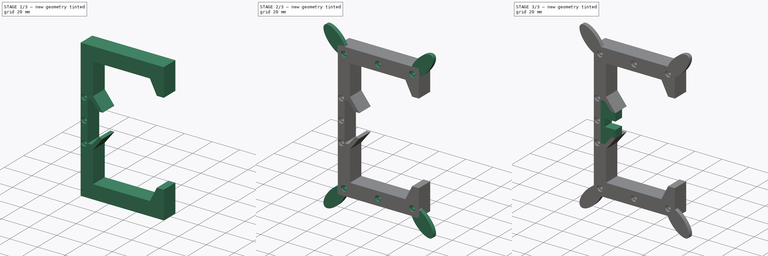
[diagram: build sequence overview — one tinted view per stage of 3, left to right]
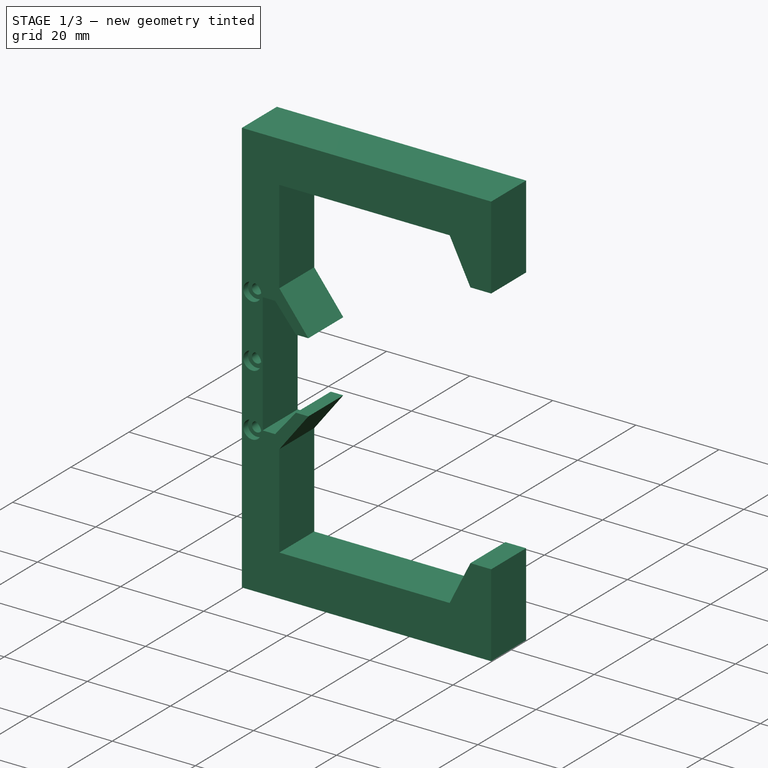
[diagram: stage 1 of 3 — iso view after this stage's code; geometry added in this stage tinted green]
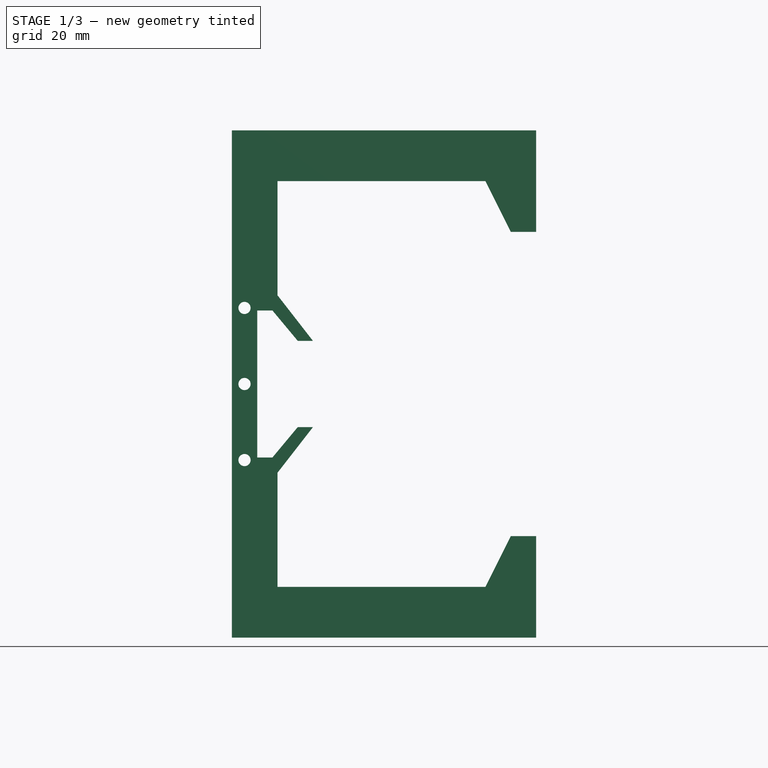
[diagram: stage 1 of 3 — front view after this stage's code; geometry added in this stage tinted green]
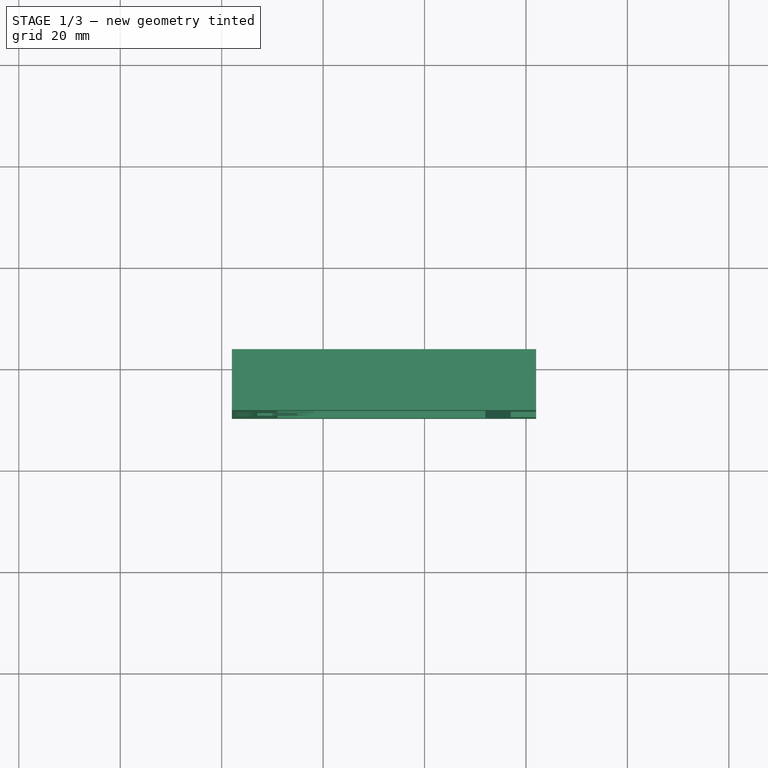
[diagram: stage 1 of 3 — top view after this stage's code; geometry added in this stage tinted green]
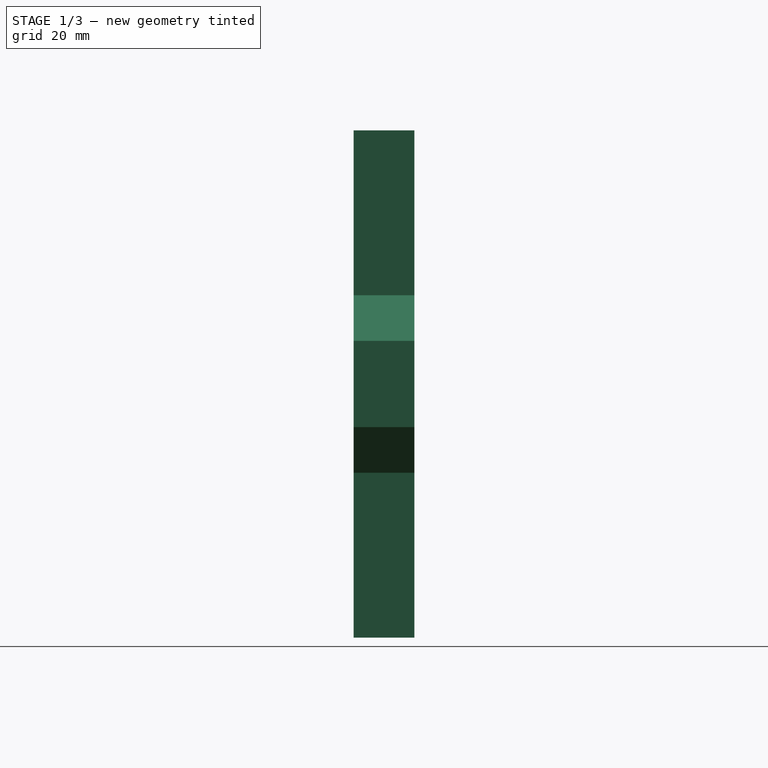
[diagram: stage 1 of 3 — right view after this stage's code; geometry added in this stage tinted green]
FCSTD DOCUMENT  (FreeCAD 1.0R39319 (Git))
Label: bottom-stand-02
License: All rights reserved
LicenseURL: http://en.wikipedia.org/wiki/All_rights_reserved
objects: Sketcher::SketchObject×6, PartDesign::Pad×3, PartDesign::Hole×2, PartDesign::Pocket×1, PartDesign::Body×1, App::Part×1, Measure::MeasureDistanceDetached×1, App::DocumentObjectGroup×1
note: 31 computed .brp shape members not serialized (recipe doc carries the construction recipe); baked Part::Feature solids carry a one-line shape summary decoded from their .brp

FEATURE [Sketcher::SketchObject] Sketch001
  ArcFitTolerance = 1e-06
  FullyConstrained = false
  MakeInternals = false
  MapMode = 45
  Placement = pos=(-8.84591,-9.71239,7.5) rot=(-1,0,0;1.5708rad)
  sketch-geometry (25):
    g0: GeomPoint [constr] X=-3.15 Y=8.69e-14 Z=0
    g1: LineSegment StartX=3.84591 StartY=-8.5 StartZ=0 EndX=-1.15409 EndY=-14.5 EndZ=0
    g2: LineSegment StartX=-1.15409 StartY=-14.5 StartZ=0 EndX=-4.15 EndY=-14.5 EndZ=0
    g3: LineSegment StartX=-4.15 StartY=-14.5 StartZ=0 EndX=-4.15 EndY=14.5 EndZ=0
    g4: LineSegment StartX=-4.15 StartY=14.5 StartZ=0 EndX=-1.15409 EndY=14.5 EndZ=0
    g5: LineSegment StartX=-1.15409 StartY=14.5 StartZ=0 EndX=3.84591 EndY=8.5 EndZ=0
    g6: LineSegment StartX=3.84591 StartY=8.5 StartZ=0 EndX=6.84591 EndY=8.5 EndZ=0
    g7: LineSegment StartX=6.84591 StartY=8.5 StartZ=0 EndX=-0.15 EndY=17.5 EndZ=0
    g8: LineSegment StartX=-9.15 StartY=17.5 StartZ=0 EndX=-9.15 EndY=-17.5 EndZ=0
    g9: LineSegment StartX=-0.15 StartY=-17.5 StartZ=0 EndX=6.84591 EndY=-8.5 EndZ=0
    g10: LineSegment StartX=6.84591 StartY=-8.5 StartZ=0 EndX=3.84591 EndY=-8.5 EndZ=0
    g11: LineSegment StartX=-0.15 StartY=17.5 StartZ=0 EndX=-0.15 EndY=40 EndZ=0
    g12: LineSegment StartX=-0.15 StartY=40 StartZ=0 EndX=40.85 EndY=40 EndZ=0
    g13: LineSegment StartX=40.85 StartY=40 StartZ=0 EndX=45.85 EndY=30 EndZ=0
    g14: LineSegment StartX=45.85 StartY=30 StartZ=0 EndX=50.85 EndY=30 EndZ=0
    g15: LineSegment StartX=50.85 StartY=30 StartZ=0 EndX=50.85 EndY=50 EndZ=0
    g16: LineSegment StartX=50.85 StartY=50 StartZ=0 EndX=-9.15 EndY=50 EndZ=0
    g17: LineSegment StartX=-9.15 StartY=50 StartZ=0 EndX=-9.15 EndY=17.5 EndZ=0
    g18: LineSegment StartX=-0.15 StartY=-17.5 StartZ=0 EndX=-0.15 EndY=-40 EndZ=0
    g19: LineSegment StartX=-0.15 StartY=-40 StartZ=0 EndX=40.85 EndY=-40 EndZ=0
    g20: LineSegment StartX=40.85 StartY=-40 StartZ=0 EndX=45.85 EndY=-30 EndZ=0
    g21: LineSegment StartX=45.85 StartY=-30 StartZ=0 EndX=50.85 EndY=-30 EndZ=0
    g22: LineSegment StartX=50.85 StartY=-30 StartZ=0 EndX=50.85 EndY=-50 EndZ=0
    g23: LineSegment StartX=50.85 StartY=-50 StartZ=0 EndX=-9.15 EndY=-50 EndZ=0
    g24: LineSegment StartX=-9.15 StartY=-50 StartZ=0 EndX=-9.15 EndY=-17.5 EndZ=0
  constraints (82):
    c: Coincident(g1,g2)
    c: Horizontal(g2)
    c: Coincident(g2,g3)
    c: Vertical(g3)
    c: Coincident(g3,g4)
    c: Horizontal(g4)
    c: Coincident(g4,g5)
    c: Coincident(g5,g6)
    c: Horizontal(g6)
    c: Coincident(g6,g7)
    c: Vertical(g8)
    c: Coincident(g9,g10)
    c: Coincident(g10,g1)
    c: DistanceX(g2,g-5) = 1
    c: DistanceX(g8,g2) = 5
    c: DistanceX(g1,g9) = 3
    c: Horizontal(g10)
    c: Equal(g4,g2)
    c: Equal(g7,g9)
    c: Equal(g5,g1)
    c: Equal(g6,g10)
    c: DistanceY(g-7,g3) = 1
    c: DistanceY(g2,g-5) = 1
    c: DistanceY(g-6,g5) = 1
    c: DistanceY(g1,g-3) = 1
    c: DistanceX(g1,g-5) = 0
    c: DistanceX(g-3,g1) = 0
    c: DistanceY(g8,g2) = 3
    c: Coincident(g11,g12)
    c: Horizontal(g12)
    c: Coincident(g12,g13)
    c: Coincident(g13,g14)
    c: Horizontal(g14)
    c: Coincident(g14,g15)
    c: Vertical(g15)
    c: Coincident(g15,g16)
    c: Horizontal(g16)
    c: Coincident(g16,g17)
    c: Vertical(g17)
    c: Vertical(g18)
    c: Coincident(g18,g19)
    c: Horizontal(g19)
    c: Coincident(g19,g20)
    c: Coincident(g20,g21)
    c: Horizontal(g21)
    c: Coincident(g21,g22)
    c: Vertical(g22)
    c: Coincident(g22,g23)
    c: Horizontal(g23)
    c: Coincident(g23,g24)
    c: Coincident(g24,g8)
    c: Vertical(g24)
    c: DistanceX(g16,g16) = 60
    c: Equal(g16,g23)
    c: Equal(g22,g15)
    c: Equal(g21,g14)
    c: DistanceX(g20,g20) = 5
    c: Parallel(g17,g11)
    c: DistanceX(g19,g19) = 41
    c: DistanceX(g12,g12) = 41
    c: DistanceX(g12,g19) = 0
    c: DistanceY(g1,g7) = 32
    c: DistanceY(g9,g1) = 3
    c: DistanceX(g7,g-1) = 0.15
    c: DistanceX(g16,g7) = 9
    c: DistanceY(g-1,g11) = 40
    c: DistanceY(g18,g-1) = 40
    c: DistanceY(g-1,g16) = 50
    c: DistanceY(g23,g-1) = 50
    c: DistanceY(g22,g22) = 20
    c: DistanceY(g11,g11) = 22.5
    c: DistanceY(g8,g8) = 35
    c: DistanceY(g17,g17) = 32.5
    c: Coincident(g11,g7)
    c: Coincident(g18,g9)
    c: Coincident(g8,g17)
    c: DistanceX(g8,g-1) = 9.15
    c: DistanceX(g0,g-1) = 3.15
    c: DistanceX(g-5,g-5) = 2
    c: DistanceX(g23,g23) = 60
    c: DistanceX(g13,g13) = 5
    c: DistanceY(g13,g13) = 10
FEATURE [PartDesign::Pad] Pad
  Direction = (0,1,2e-16)
  Length = 12
  Length2 = 10
  Placement = pos=(-8.84591,-9.71239,7.5) rot=(-1,0,0;1.5708rad)
  Profile = -> Sketch001
  ReferenceAxis = -> Sketch001 [N_Axis]
  Suppressed = false
  Type = 0
FEATURE [Sketcher::SketchObject] Sketch
  ArcFitTolerance = 1e-06
  FullyConstrained = true
  MakeInternals = false
  MapMode = 5
  Placement = pos=(-8.84591,-9.71239,7.5) rot=(1,0,0;1.5708rad)
  sketch-geometry (4):
    g0: LineSegment [constr] StartX=-6.65409 StartY=16 StartZ=0 EndX=-6.65409 EndY=-16 EndZ=0
    g1: Circle CenterX=-6.65409 CenterY=-4.868e-13 CenterZ=0 NormalX=0 NormalY=0 NormalZ=1 AngleXU=0 Radius=1
    g2: Circle CenterX=-6.65409 CenterY=15 CenterZ=0 NormalX=0 NormalY=0 NormalZ=1 AngleXU=0 Radius=1
    g3: Circle CenterX=-6.65409 CenterY=-15 CenterZ=0 NormalX=0 NormalY=0 NormalZ=1 AngleXU=0 Radius=1
  constraints (10):
    c: Symmetric(g-3,g-4,g0)
    c: Symmetric(g-3,g-4,g0)
    c: Diameter(g1) = 2
    c: Symmetric(g0,g0,g1)
    c: Diameter(g2) = 2
    c: PointOnObject(g2,g0)
    c: Diameter(g3) = 2
    c: Distance(g2,g1) = 15
    c: Distance(g1,g3) = 15
    c: DistanceY(g3,g1) = 15
FEATURE [PartDesign::Hole] Hole
  BaseFeature = -> Pad
  CustomThreadClearance = 0
  Depth = 235.16
  DepthType = 1
  Diameter = 2.4
  DrillForDepth = false
  DrillPoint = 1
  DrillPointAngle = 118
  HoleCutCountersinkAngle = 90
  HoleCutCustomValues = false
  HoleCutDepth = 1.6
  HoleCutDiameter = 4.3
  HoleCutType = 4
  ModelThread = false
  Placement = pos=(-8.84591,-9.71239,7.5) rot=(-1,0,0;1.5708rad)
  Profile = -> Sketch
  Suppressed = false
  Tapered = false
  TaperedAngle = 90
  ThreadClass = 0
  ThreadDepth = 235.16
  ThreadDepthType = 0
  ThreadDirection = 0
  ThreadFit = 0
  ThreadSize = 6
  ThreadType = 1
  Threaded = false
  UseCustomThreadClearance = false
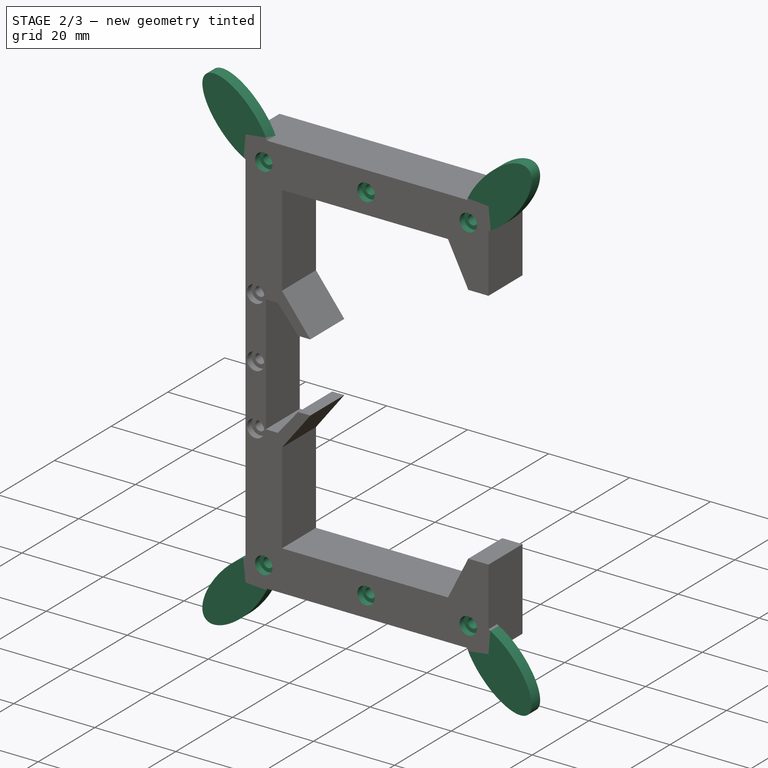
[diagram: stage 2 of 3 — iso view after this stage's code; geometry added in this stage tinted green]
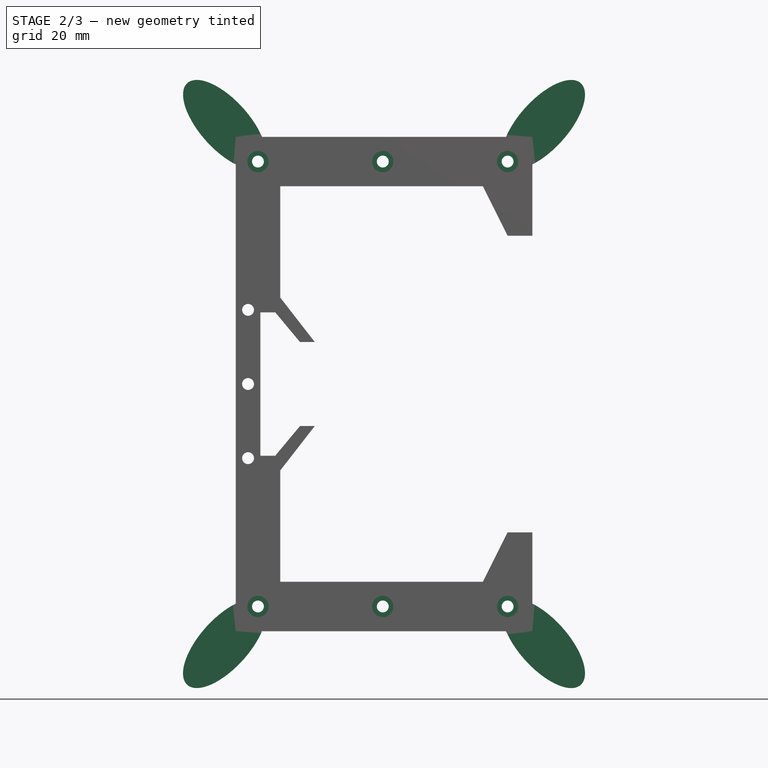
[diagram: stage 2 of 3 — front view after this stage's code; geometry added in this stage tinted green]
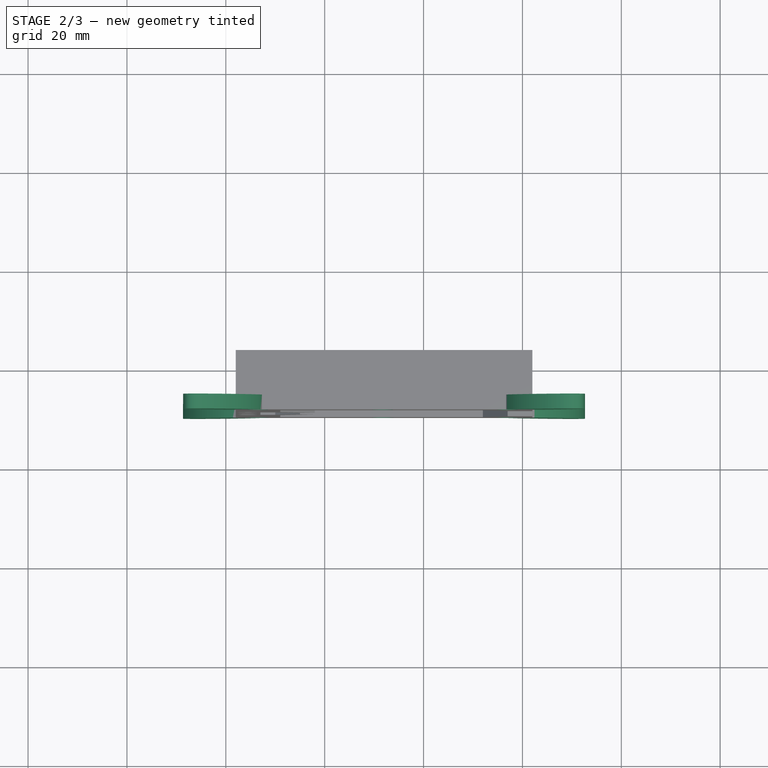
[diagram: stage 2 of 3 — top view after this stage's code; geometry added in this stage tinted green]
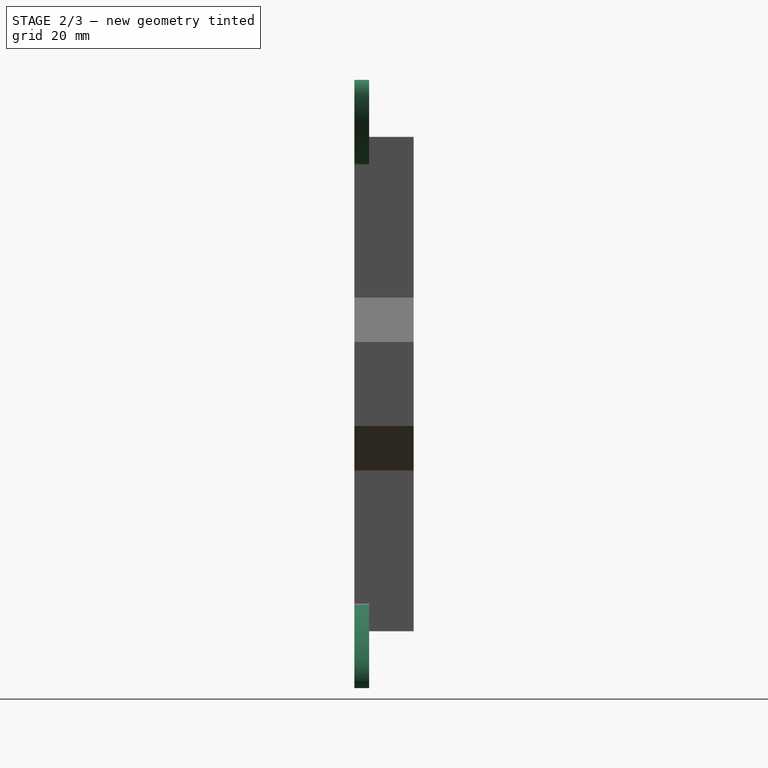
[diagram: stage 2 of 3 — right view after this stage's code; geometry added in this stage tinted green]
FEATURE [Sketcher::SketchObject] Sketch002
  ArcFitTolerance = 1e-06
  AttachmentSupport = -> [Hole]
  FullyConstrained = true
  MakeInternals = false
  MapMode = 5
  Placement = pos=(-8.84591,-9.71239,7.5) rot=(1,0,0;1.5708rad)
  sketch-geometry (8):
    g0: LineSegment [constr] StartX=-4.65 StartY=45 StartZ=0 EndX=45.85 EndY=45 EndZ=0
    g1: Circle CenterX=20.6 CenterY=45 CenterZ=0 NormalX=0 NormalY=0 NormalZ=1 AngleXU=0 Radius=1
    g2: LineSegment [constr] StartX=-4.65 StartY=-45 StartZ=0 EndX=45.85 EndY=-45 EndZ=0
    g3: Circle CenterX=20.6 CenterY=-45 CenterZ=0 NormalX=0 NormalY=0 NormalZ=1 AngleXU=0 Radius=1
    g4: Circle CenterX=-4.65 CenterY=-45 CenterZ=0 NormalX=0 NormalY=0 NormalZ=1 AngleXU=0 Radius=1
    g5: Circle CenterX=45.85 CenterY=-45 CenterZ=0 NormalX=0 NormalY=0 NormalZ=1 AngleXU=0 Radius=1
    g6: Circle CenterX=-4.65 CenterY=45 CenterZ=0 NormalX=0 NormalY=0 NormalZ=1 AngleXU=0 Radius=1
    g7: Circle CenterX=45.85 CenterY=45 CenterZ=0 NormalX=0 NormalY=0 NormalZ=1 AngleXU=0 Radius=1
  constraints (16):
    c: Symmetric(g-4,g-3,g0)
    c: Symmetric(g-3,g-4,g0)
    c: Diameter(g1) = 2
    c: Symmetric(g0,g0,g1)
    c: Symmetric(g-5,g-6,g2)
    c: Symmetric(g-6,g-5,g2)
    c: Diameter(g3) = 2
    c: Symmetric(g2,g2,g3)
    c: Diameter(g4) = 2
    c: Coincident(g4,g2)
    c: Diameter(g5) = 2
    c: Coincident(g5,g2)
    c: Diameter(g6) = 2
    c: Coincident(g6,g0)
    c: Diameter(g7) = 2
    c: Coincident(g7,g0)
FEATURE [PartDesign::Hole] Hole001
  BaseFeature = -> Hole
  CustomThreadClearance = 0
  Depth = 235.16
  DepthType = 1
  Diameter = 2.4
  DrillForDepth = false
  DrillPoint = 1
  DrillPointAngle = 118
  HoleCutCountersinkAngle = 90
  HoleCutCustomValues = false
  HoleCutDepth = 1.6
  HoleCutDiameter = 4.3
  HoleCutType = 4
  ModelThread = false
  Placement = pos=(-8.84591,-9.71239,7.5) rot=(-1,0,0;1.5708rad)
  Profile = -> Sketch002
  Suppressed = false
  Tapered = false
  TaperedAngle = 90
  ThreadClass = 0
  ThreadDepth = 235.16
  ThreadDepthType = 0
  ThreadDirection = 0
  ThreadFit = 0
  ThreadSize = 6
  ThreadType = 1
  Threaded = false
  UseCustomThreadClearance = false
FEATURE [Sketcher::SketchObject] Sketch003
  ArcFitTolerance = 1e-06
  AttachmentSupport = -> [Hole001]
  ExternalGeometry = -> [Sketch001]
  FullyConstrained = false
  MakeInternals = false
  MapMode = 5
  Placement = pos=(-8.84591,-9.71239,7.5) rot=(1,0,0;1.5708rad)
  sketch-geometry (25):
    g0: LineSegment [constr] StartX=20.85 StartY=50 StartZ=0 EndX=20.85 EndY=-50 EndZ=0
    g1: ArcOfEllipse CenterX=-11.4 CenterY=52.5 CenterZ=0 NormalX=0 NormalY=0 NormalZ=1 MajorRadius=11.2611 MinorRadius=5 AngleXU=2.30361 StartAngle=4.05119 EndAngle=8.58345
    g2: LineSegment [constr] StartX=-18.9333 StartY=60.8703 StartZ=0 EndX=-3.86672 EndY=44.1297 EndZ=0
    g3: LineSegment [constr] StartX=-15.1165 StartY=49.1552 StartZ=0 EndX=-7.68353 EndY=55.8448 EndZ=0
    g4: GeomPoint [constr] X=-18.15 Y=60 Z=0
    g5: GeomPoint [constr] X=-4.65 Y=45 Z=0
    g6: ArcOfEllipse CenterX=53.1019 CenterY=52.4978 CenterZ=0 NormalX=0 NormalY=0 NormalZ=1 MajorRadius=11.2611 MinorRadius=5 AngleXU=0.837483 StartAngle=3.98318 EndAngle=8.51537
    g7: LineSegment [constr] StartX=60.6394 StartY=60.8644 StartZ=0 EndX=45.5645 EndY=44.1313 EndZ=0
    g8: LineSegment [constr] StartX=56.8167 StartY=49.1512 StartZ=0 EndX=49.3871 EndY=55.8445 EndZ=0
    g9: GeomPoint [constr] X=59.8557 Y=59.9945 Z=0
    g10: GeomPoint [constr] X=46.3482 Y=45.0012 Z=0
    g11: ArcOfEllipse CenterX=-11.405 CenterY=-52.4944 CenterZ=0 NormalX=0 NormalY=0 NormalZ=1 MajorRadius=11.2611 MinorRadius=5 AngleXU=-2.3049 StartAngle=3.98359 EndAngle=8.51566
    g12: LineSegment [constr] StartX=-18.949 StartY=-60.8551 StartZ=0 EndX=-3.86094 EndY=-44.1338 EndZ=0
    g13: LineSegment [constr] StartX=-15.1171 StartY=-49.1448 StartZ=0 EndX=-7.69279 EndY=-55.844 EndZ=0
    g14: GeomPoint [constr] X=-18.1646 Y=-59.9858 Z=0
    g15: GeomPoint [constr] X=-4.64534 Y=-45.0031 Z=0
    g16: LineSegment StartX=-9.15 StartY=44.4277 StartZ=0 EndX=-3.84083 EndY=50 EndZ=0
    g17: LineSegment StartX=45.5408 StartY=50 StartZ=0 EndX=50.85 EndY=44.4277 EndZ=0
    g18: LineSegment StartX=-9.15 StartY=-44.4277 StartZ=0 EndX=-3.84083 EndY=-50 EndZ=0
    g19: ArcOfEllipse CenterX=53.1024 CenterY=-52.4973 CenterZ=0 NormalX=0 NormalY=0 NormalZ=1 MajorRadius=11.2611 MinorRadius=5 AngleXU=-0.837366 StartAngle=4.05096 EndAngle=8.58313
    g20: LineSegment StartX=50.85 StartY=-44.4277 StartZ=0 EndX=45.5408 EndY=-50 EndZ=0
    g21: LineSegment [constr] StartX=60.6408 StartY=-60.863 StartZ=0 EndX=45.5639 EndY=-44.1317 EndZ=0
    g22: LineSegment [constr] StartX=56.8168 StartY=-49.1502 StartZ=0 EndX=49.388 EndY=-55.8444 EndZ=0
    g23: GeomPoint [constr] X=59.857 Y=-59.9932 Z=0
    g24: GeomPoint [constr] X=46.3478 Y=-45.0015 Z=0
  constraints (28):
    c: Symmetric(g-4,g-3,g0)
    c: Symmetric(g-6,g-7,g0)
    c: InternalAlignment(g2-g5 -> g1) x4
    c: PointOnObject(g1,g-3)
    c: PointOnObject(g1,g-4)
    c: Symmetric(g-4,g-9,g5)
    c: Symmetric(g-9,g4,g-4)
    c: Distance(g3,g3) = 10
    c: InternalAlignment(g7-g10 -> g6) x4
    c: Equal(g1,g6)
    c: Symmetric(g1,g6,g0)
    c: Symmetric(g1,g6,g0)
    c: InternalAlignment(g12-g15 -> g11) x4
    c: Equal(g1,g11)
    c: Symmetric(g1,g11,g-1)
    c: Symmetric(g1,g11,g-1)
    c: Coincident(g16,g1)
    c: Coincident(g16,g1)
    c: Coincident(g17,g6)
    c: Coincident(g17,g6)
    c: Coincident(g18,g11)
    c: Coincident(g18,g11)
    c: InternalAlignment(g21-g24 -> g19) x4
    c: Equal(g11,g19)
    c: Symmetric(g11,g19,g0)
    c: Symmetric(g11,g19,g0)
    c: Symmetric(g18,g20,g0)
    c: Symmetric(g18,g20,g0)
FEATURE [PartDesign::Pad] Pad001
  BaseFeature = -> Hole001
  Direction = (0,-1,2e-16)
  Length = 3
  Length2 = 10
  Placement = pos=(-8.84591,-9.71239,7.5) rot=(-1,0,0;1.5708rad)
  Profile = -> Sketch003
  ReferenceAxis = -> Sketch003 [N_Axis]
  Reversed = true
  Suppressed = false
  Type = 0
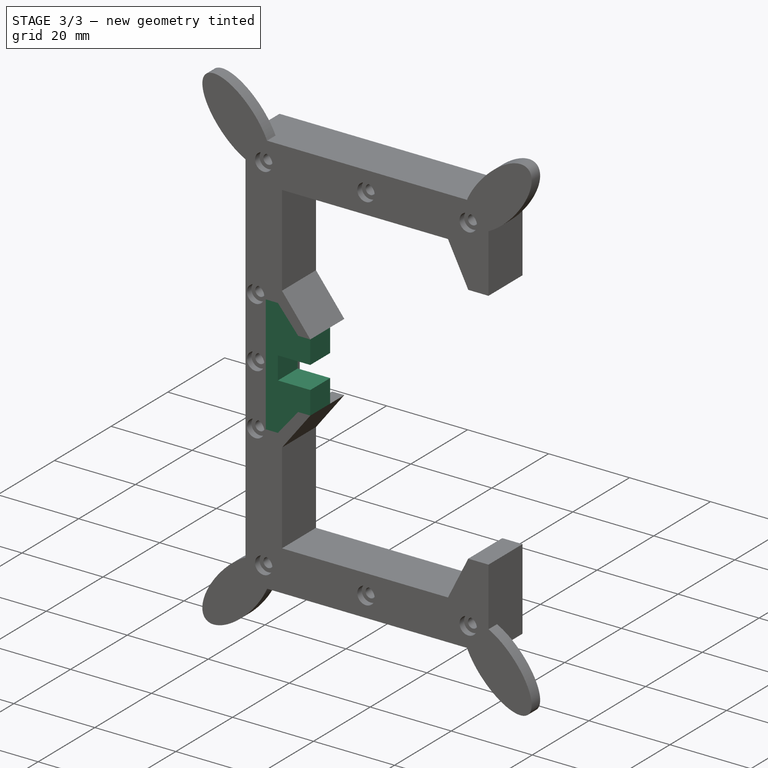
[diagram: stage 3 of 3 — iso view after this stage's code; geometry added in this stage tinted green]
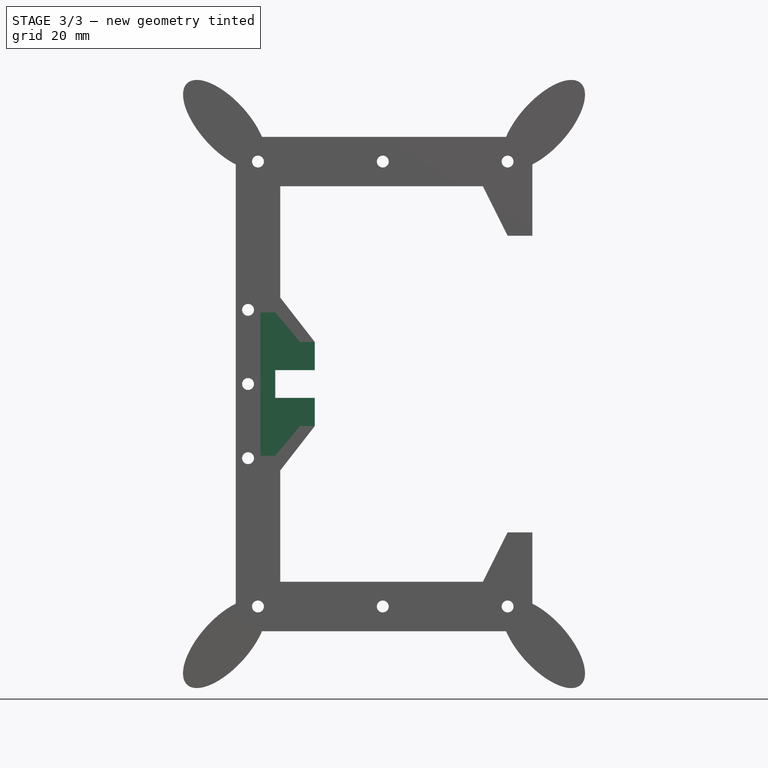
[diagram: stage 3 of 3 — front view after this stage's code; geometry added in this stage tinted green]
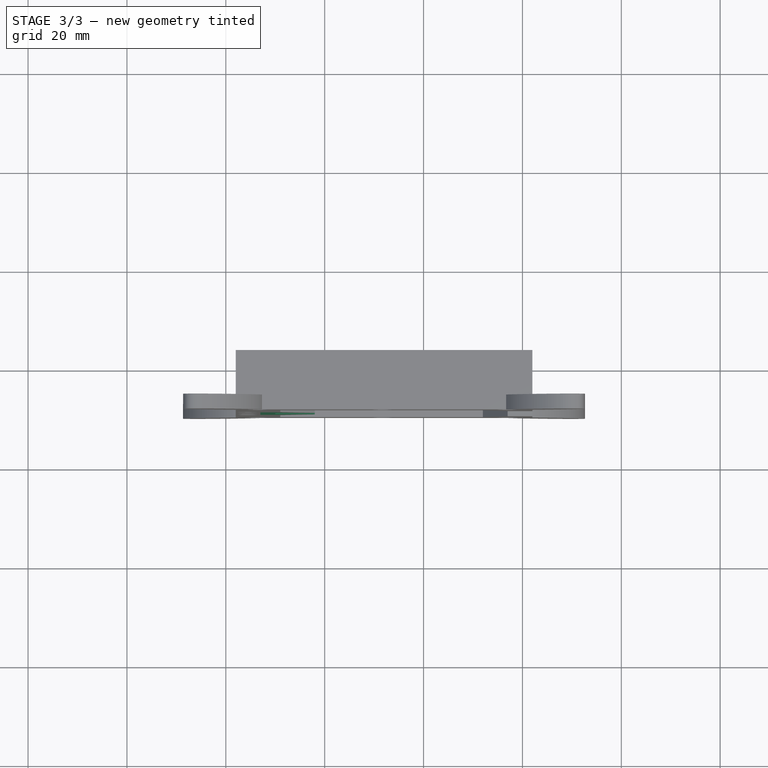
[diagram: stage 3 of 3 — top view after this stage's code; geometry added in this stage tinted green]
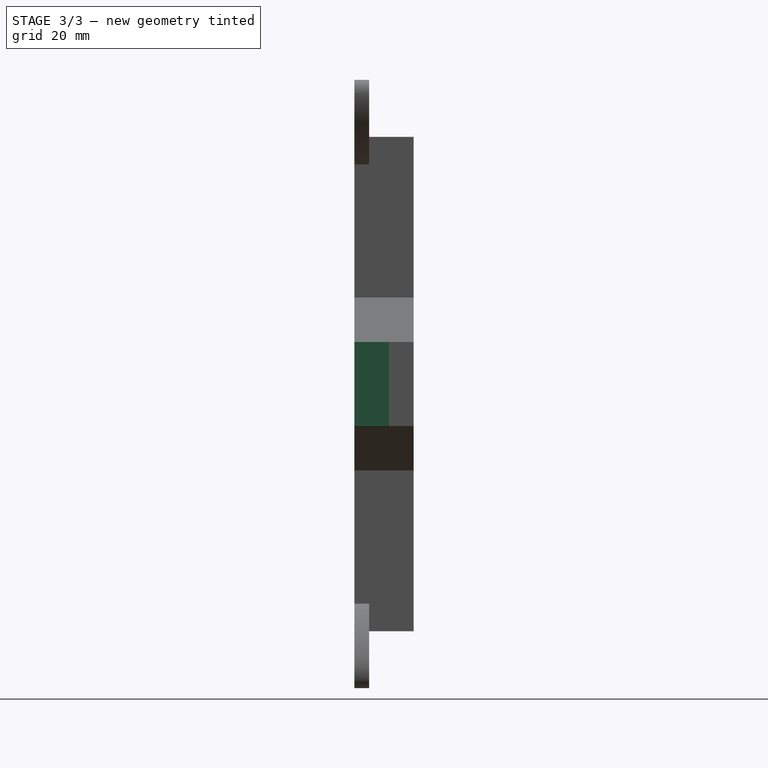
[diagram: stage 3 of 3 — right view after this stage's code; geometry added in this stage tinted green]
FEATURE [Sketcher::SketchObject] Sketch004
  ArcFitTolerance = 1e-06
  AttachmentSupport = -> [Pad001]
  ExternalGeometry = -> [Pad001]
  FullyConstrained = true
  MakeInternals = false
  MapMode = 5
  Placement = pos=(-8.84591,-9.71239,7.5) rot=(1,0,0;1.5708rad)
  sketch-geometry (8):
    g0: LineSegment StartX=-4.15 StartY=14.5 StartZ=0 EndX=-4.15 EndY=-14.5 EndZ=0
    g1: LineSegment StartX=-4.15 StartY=-14.5 StartZ=0 EndX=-1.15409 EndY=-14.5 EndZ=0
    g2: LineSegment StartX=-1.15409 StartY=-14.5 StartZ=0 EndX=3.84591 EndY=-8.5 EndZ=0
    g3: LineSegment StartX=3.84591 StartY=8.5 StartZ=0 EndX=-1.15409 EndY=14.5 EndZ=0
    g4: LineSegment StartX=-1.15409 StartY=14.5 StartZ=0 EndX=-4.15 EndY=14.5 EndZ=0
    g5: LineSegment StartX=3.84591 StartY=8.5 StartZ=0 EndX=6.84591 EndY=8.5 EndZ=0
    g6: LineSegment StartX=6.84591 StartY=8.5 StartZ=0 EndX=6.84591 EndY=-8.5 EndZ=0
    g7: LineSegment StartX=6.84591 StartY=-8.5 StartZ=0 EndX=3.84591 EndY=-8.5 EndZ=0
  constraints (18):
    c: Coincident(g-3,g0)
    c: Coincident(g0,g-3)
    c: Coincident(g0,g1)
    c: Coincident(g1,g-5)
    c: Coincident(g1,g2)
    c: Coincident(g2,g-5)
    c: Coincident(g3,g-4)
    c: Coincident(g3,g4)
    c: Coincident(g4,g0)
    c: DistanceX(g0,g0) = 0
    c: DistanceX(g0,g-4) = 7.99591
    c: Coincident(g3,g-9)
    c: Coincident(g3,g5)
    c: Coincident(g5,g-9)
    c: Coincident(g5,g6)
    c: Coincident(g6,g-8)
    c: Coincident(g6,g7)
    c: Coincident(g7,g2)
FEATURE [PartDesign::Pad] Pad002
  BaseFeature = -> Pad001
  Direction = (0,-1,2e-16)
  Length = 7
  Length2 = 10
  Placement = pos=(-8.84591,-9.71239,7.5) rot=(-1,0,0;1.5708rad)
  Profile = -> Sketch004
  ReferenceAxis = -> Sketch004 [N_Axis]
  Reversed = true
  Suppressed = false
  Type = 0
FEATURE [Sketcher::SketchObject] Sketch005
  ArcFitTolerance = 1e-06
  AttachmentSupport = -> [Pad002]
  ExternalGeometry = -> [Pad002]
  FullyConstrained = true
  MakeInternals = false
  MapMode = 5
  Placement = pos=(-8.84591,-2.71239,7.5) rot=(-1,0,0;1.5708rad)
  sketch-geometry (7):
    g0: LineSegment [constr] StartX=3.84591 StartY=8.5 StartZ=0 EndX=3.84591 EndY=-8.5 EndZ=0
    g1: GeomPoint [constr] X=3.84591 Y=1.122e-13 Z=0
    g2: LineSegment StartX=-1.15409 StartY=-2.8 StartZ=0 EndX=8.84591 EndY=-2.8 EndZ=0
    g3: LineSegment StartX=8.84591 StartY=-2.8 StartZ=0 EndX=8.84591 EndY=2.8 EndZ=0
    g4: LineSegment StartX=8.84591 StartY=2.8 StartZ=0 EndX=-1.15409 EndY=2.8 EndZ=0
    g5: LineSegment StartX=-1.15409 StartY=2.8 StartZ=0 EndX=-1.15409 EndY=-2.8 EndZ=0
    g6: GeomPoint [constr] X=3.84591 Y=1.122e-13 Z=0
  constraints (16):
    c: Coincident(g0,g-3)
    c: Coincident(g0,g-4)
    c: Symmetric(g0,g0,g1)
    c: Coincident(g2,g3)
    c: Coincident(g3,g4)
    c: Coincident(g4,g5)
    c: Coincident(g5,g2)
    c: Horizontal(g2)
    c: Horizontal(g4)
    c: Vertical(g3)
    c: Vertical(g5)
    c: Symmetric(g4,g2,g6)
    c: Distance(g3,g5) = 10
    c: Distance(g2,g4) = 5.6
    c: Coincident(g6,g1)
    c: DistanceX(g-5,g4) = 2.99591
FEATURE [PartDesign::Pocket] Pocket
  BaseFeature = -> Pad002
  Direction = (0,-1,-2e-16)
  Length = 5
  Length2 = 5
  Placement = pos=(-8.84591,-9.71239,7.5) rot=(-1,0,0;1.5708rad)
  Profile = -> Sketch005
  ReferenceAxis = -> Sketch005 [N_Axis]
  Suppressed = false
  Type = 1
FEATURE [PartDesign::Body] Body
  AllowCompound = false
  Group = -> [Sketch001,Pad,Sketch,Hole,Sketch002,Hole001,Sketch003,Pad001,Sketch004,Pad002,Sketch005,Pocket]
  Origin = -> Origin001
  Tip = -> Pocket
FEATURE [App::Part] Part
  Group = -> [Body]
  Origin = -> Origin
FEATURE [Measure::MeasureDistanceDetached] Distance_Free  label="Distance_Free: 122.56 mm"
  Distance = 122.561
  DistanceX = 0.360407
  DistanceY = 0.305652
  DistanceZ = 122.56
  Position1 = (-24.2492,-8.66662,68.7247)
  Position2 = (-24.6097,-8.36097,-53.8353)
FEATURE [App::DocumentObjectGroup] Measurements
  Group = -> [Distance_Free]
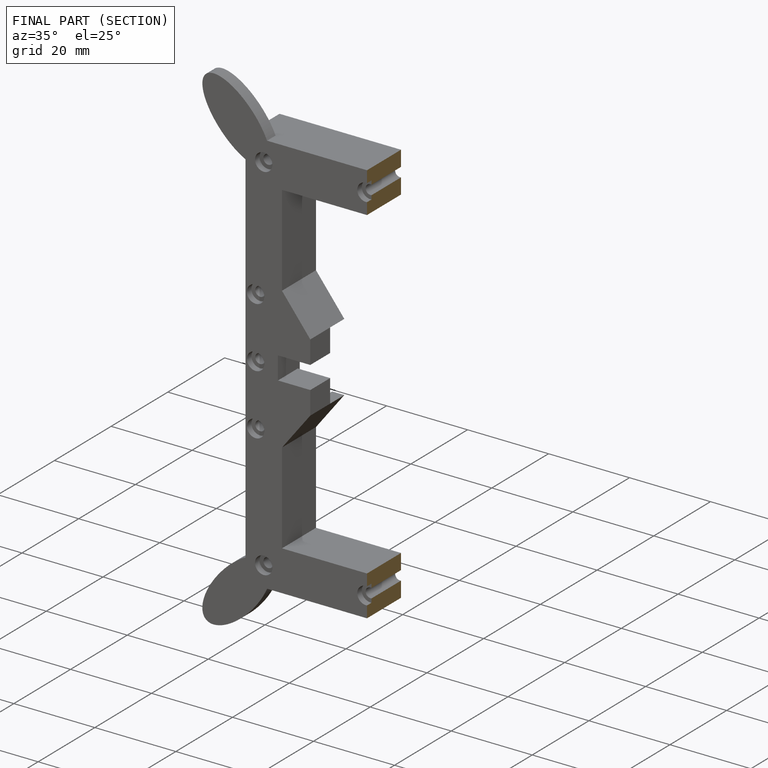
[diagram: finished part — half-section view (interior)]
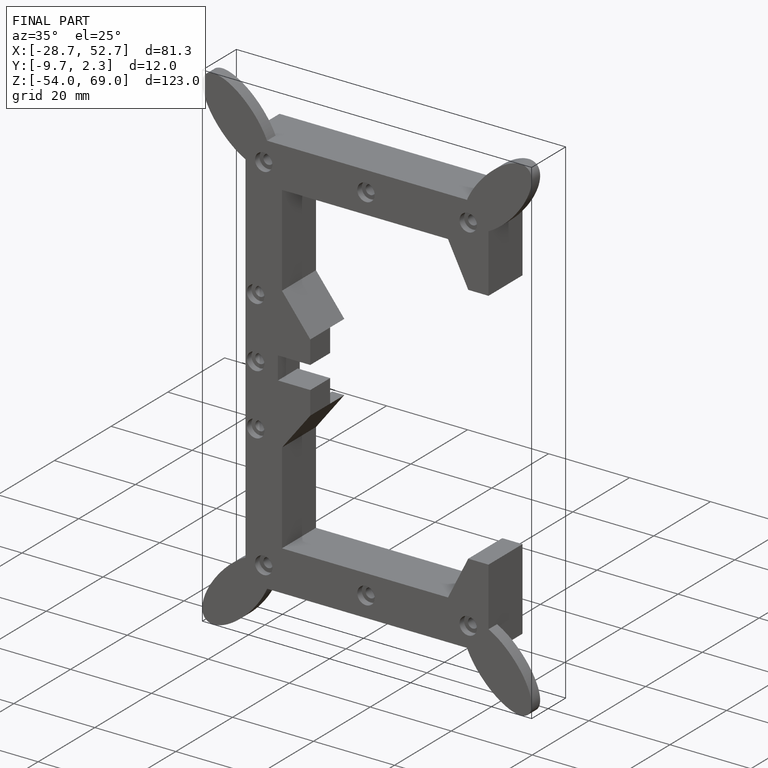
[diagram: finished part — iso view with bounding-box wireframe]
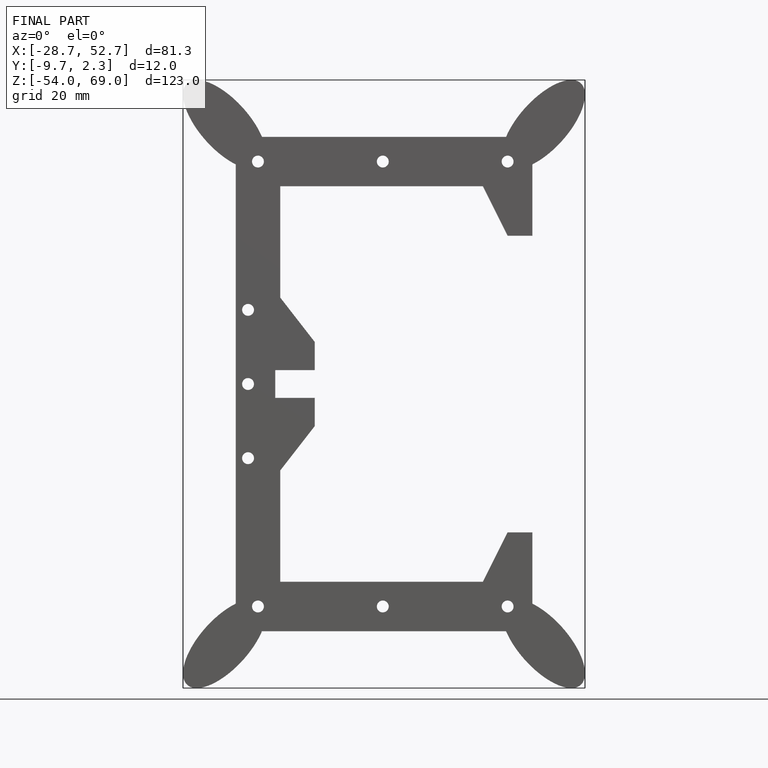
[diagram: finished part — front view with bounding-box wireframe]
